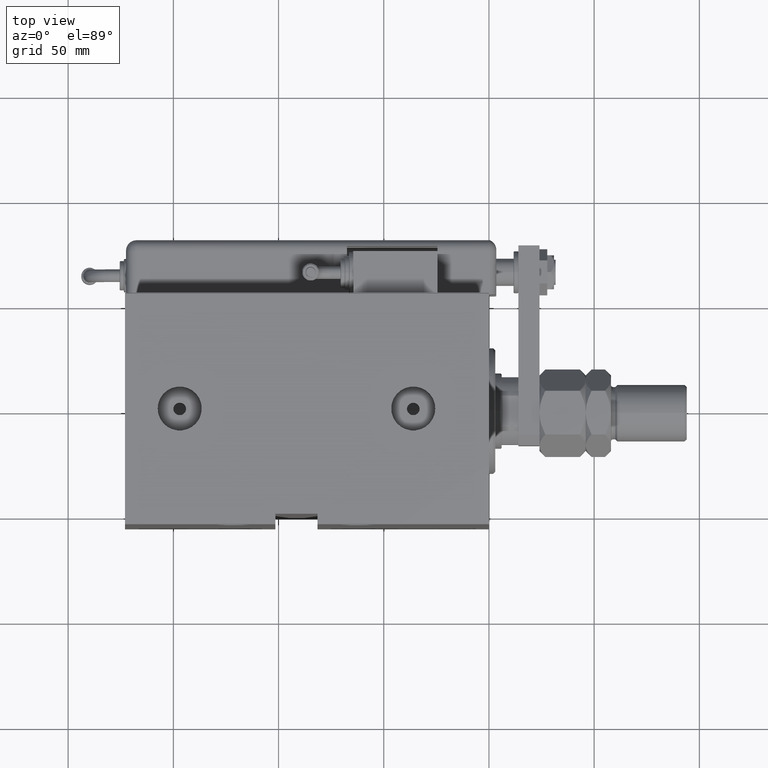
[diagram: clean part render]
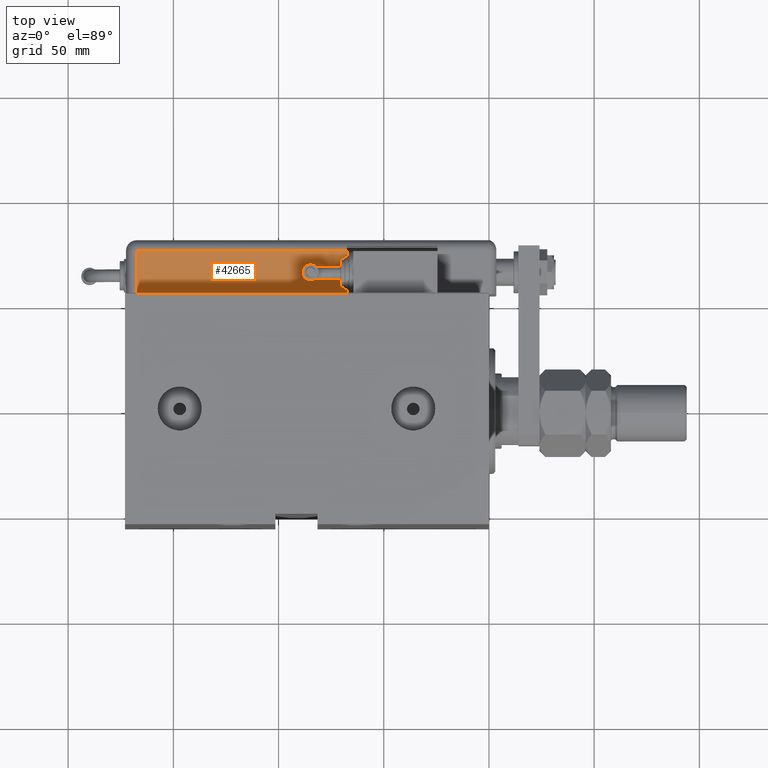
[diagram: same view with one face highlighted and labeled with its STEP entity id]
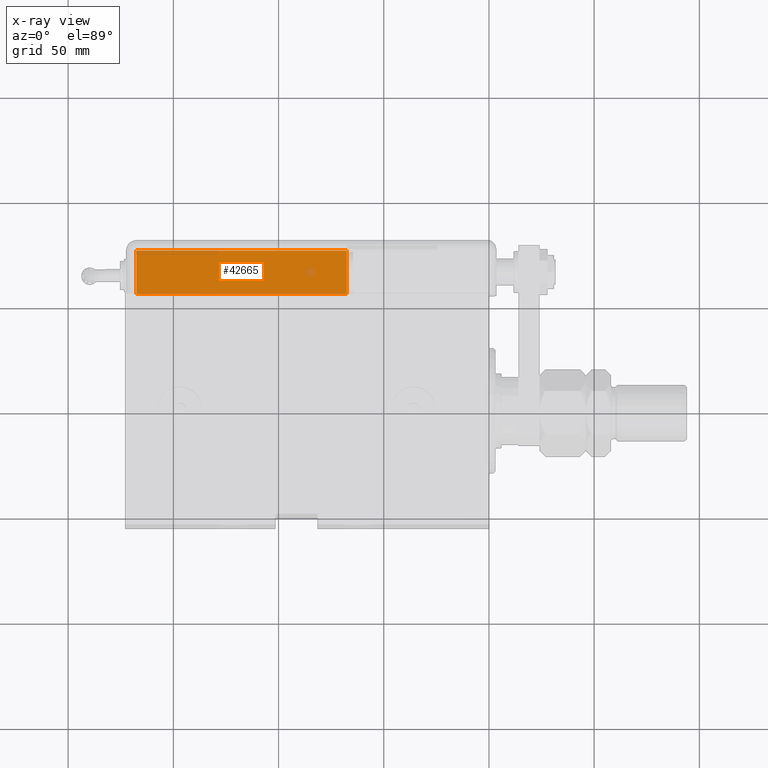
[diagram: x-ray of the same camera — body ghosted, the highlighted face saturated]
A machine part, top view. The second image highlights one B-rep face of the part: STEP entity #42665.
The next image is the same camera in x-ray: the body ghosted, the highlighted face saturated — about 4% of this face is hidden behind the body in this view.
In plain terms, the highlighted planar face has unit normal (0, 0, -1).
Its self-contained STEP definition (entity closure, byte-faithful):
#192 = AXIS2_PLACEMENT_3D ( 'NONE', #25953, #41363, #36644 ) ;
#3990 = VERTEX_POINT ( 'NONE', #51625 ) ;
#6245 = CARTESIAN_POINT ( 'NONE',  ( -28.99999999999999645, -9.421223957302264279E-15, 105.0000000000000000 ) ) ;
#6760 = EDGE_CURVE ( 'NONE', #12345, #39969, #8711, .T. ) ;
#8483 = CARTESIAN_POINT ( 'NONE',  ( -28.99999999999999645, 20.79999999999998295, 173.0000000000000000 ) ) ;
#8711 = LINE ( 'NONE', #55557, #15289 ) ;
#11085 = CARTESIAN_POINT ( 'NONE',  ( -28.99999999999999645, -1.040834085586084257E-14, 5.000000000000004441 ) ) ;
#12345 = VERTEX_POINT ( 'NONE', #6245 ) ;
#12468 = DIRECTION ( 'NONE',  ( -0.000000000000000000, -0.000000000000000000, -1.000000000000000000 ) ) ;
#12581 = ORIENTED_EDGE ( 'NONE', *, *, #28412, .T. ) ;
#15289 = VECTOR ( 'NONE', #12468, 1000.000000000000000 ) ;
#16953 = LINE ( 'NONE', #8483, #35568 ) ;
#18818 = EDGE_CURVE ( 'NONE', #3990, #33922, #16953, .T. ) ;
#21233 = CARTESIAN_POINT ( 'NONE',  ( -28.99999999999999645, -9.421223957302265857E-15, 5.000000000000004441 ) ) ;
#22168 = FACE_OUTER_BOUND ( 'NONE', #60350, .T. ) ;
#25902 = VECTOR ( 'NONE', #49734, 1000.000000000000000 ) ;
#25953 = CARTESIAN_POINT ( 'NONE',  ( -28.99999999999999645, 25.79999999999998295, 173.0000000000000000 ) ) ;
#28412 = EDGE_CURVE ( 'NONE', #33922, #39969, #39693, .T. ) ;
#32045 = DIRECTION ( 'NONE',  ( 0.000000000000000000, 0.000000000000000000, -1.000000000000000000 ) ) ;
#33922 = VERTEX_POINT ( 'NONE', #59154 ) ;
#34293 = ORIENTED_EDGE ( 'NONE', *, *, #18818, .T. ) ;
#35568 = VECTOR ( 'NONE', #32045, 1000.000000000000000 ) ;
#36644 = DIRECTION ( 'NONE',  ( -0.000000000000000000, 0.000000000000000000, -1.000000000000000000 ) ) ;
#37242 = ORIENTED_EDGE ( 'NONE', *, *, #6760, .F. ) ;
#37908 = ORIENTED_EDGE ( 'NONE', *, *, #39756, .F. ) ;
#39693 = LINE ( 'NONE', #11085, #25902 ) ;
#39756 = EDGE_CURVE ( 'NONE', #3990, #12345, #60297, .T. ) ;
#39969 = VERTEX_POINT ( 'NONE', #21233 ) ;
#40737 = PLANE ( 'NONE',  #192 ) ;
#41363 = DIRECTION ( 'NONE',  ( 1.000000000000000000, 0.000000000000000000, -0.000000000000000000 ) ) ;
#42267 = VECTOR ( 'NONE', #55264, 1000.000000000000000 ) ;
#42665 = ADVANCED_FACE ( 'NONE', ( #22168 ), #40737, .F. ) ;
#49734 = DIRECTION ( 'NONE',  ( 0.000000000000000000, -1.000000000000000000, 0.000000000000000000 ) ) ;
#51172 = CARTESIAN_POINT ( 'NONE',  ( -28.99999999999999645, 22.99999999999998934, 105.0000000000000000 ) ) ;
#51625 = CARTESIAN_POINT ( 'NONE',  ( -28.99999999999999645, 20.79999999999998295, 105.0000000000000000 ) ) ;
#55264 = DIRECTION ( 'NONE',  ( 0.000000000000000000, -1.000000000000000000, 0.000000000000000000 ) ) ;
#55557 = CARTESIAN_POINT ( 'NONE',  ( -28.99999999999999645, -9.421223957302265857E-15, 173.0000000000000000 ) ) ;
#59154 = CARTESIAN_POINT ( 'NONE',  ( -28.99999999999999645, 20.79999999999998295, 5.000000000000004441 ) ) ;
#60297 = LINE ( 'NONE', #51172, #42267 ) ;
#60350 = EDGE_LOOP ( 'NONE', ( #37242, #37908, #34293, #12581 ) ) ;